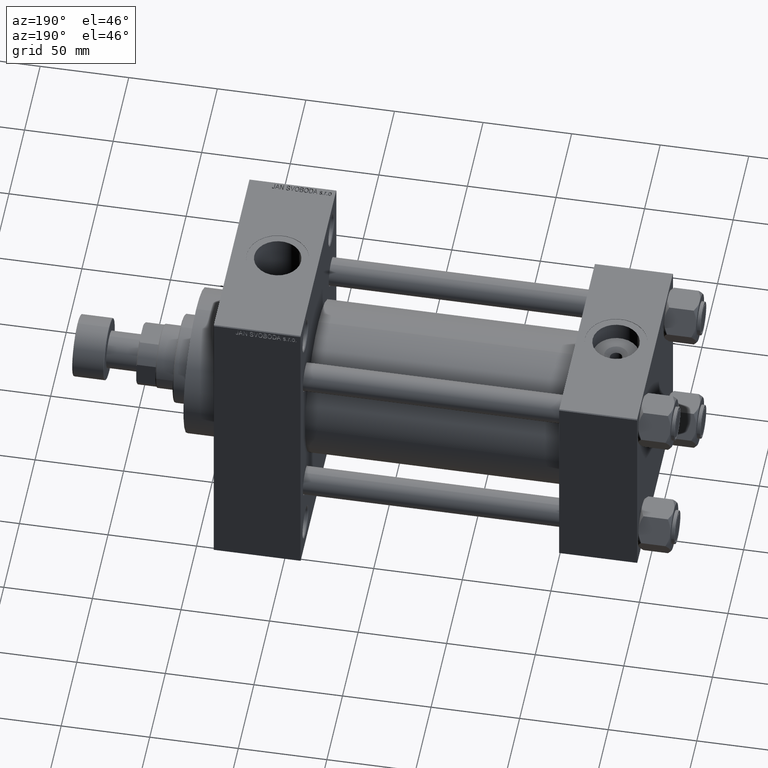
[diagram: clean part render]
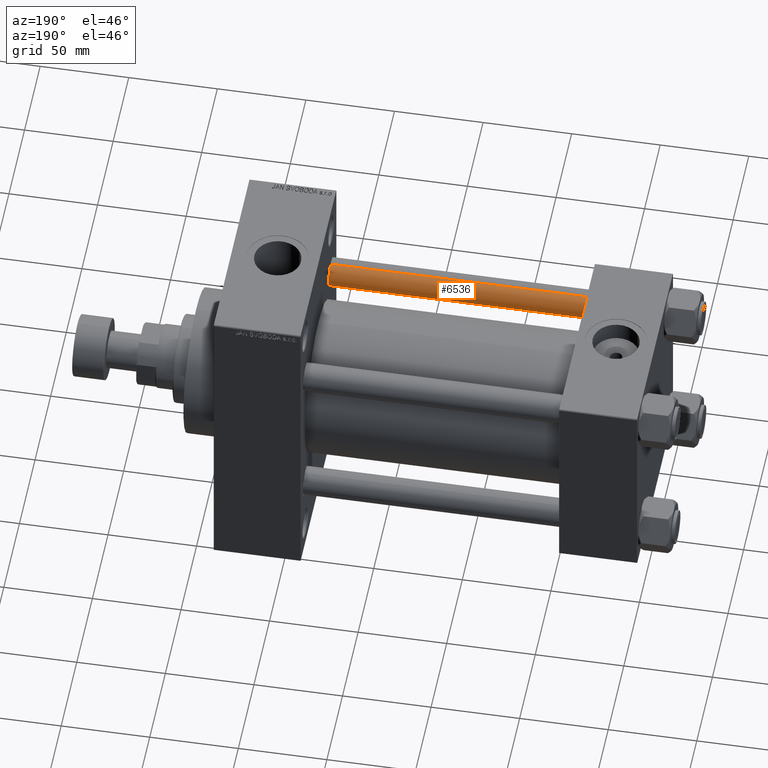
[diagram: same view with one face highlighted and labeled with its STEP entity id]
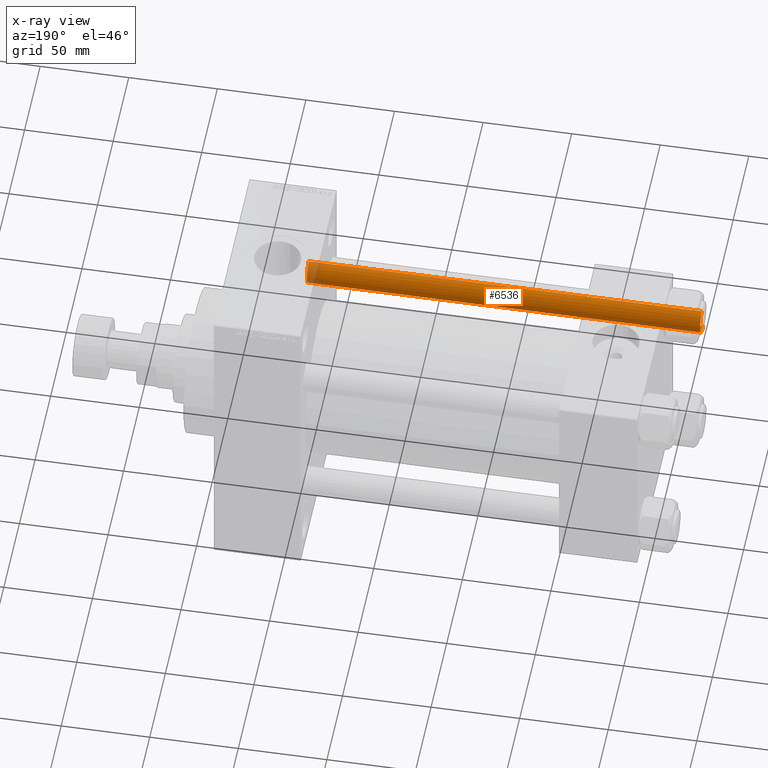
[diagram: x-ray of the same camera — body ghosted, the highlighted face saturated]
A machine part, auxiliary view. The second image highlights one B-rep face of the part: STEP entity #6536.
The next image is the same camera in x-ray: the body ghosted, the highlighted face saturated — about 3% of this face is hidden behind the body in this view.
In plain terms, the highlighted cylindrical surface (edge-blend (fillet) strip) has radius 8 mm, axis along (1, 0, 0).
Its self-contained STEP definition (entity closure, byte-faithful):
#600 = LINE ( 'NONE', #15780, #41859 ) ;
#1350 = VERTEX_POINT ( 'NONE', #40882 ) ;
#2764 = DIRECTION ( 'NONE',  ( -0.000000000000000000, -0.000000000000000000, -1.000000000000000000 ) ) ;
#3534 = CIRCLE ( 'NONE', #37884, 8.000000000000000000 ) ;
#3760 = VERTEX_POINT ( 'NONE', #14308 ) ;
#5647 = EDGE_CURVE ( 'NONE', #3760, #38433, #17274, .T. ) ;
#6536 = ADVANCED_FACE ( 'NONE', ( #36948 ), #41103, .T. ) ;
#7841 = CARTESIAN_POINT ( 'NONE',  ( 0.000000000000000000, 0.000000000000000000, 0.5000000000001669775 ) ) ;
#7954 = ORIENTED_EDGE ( 'NONE', *, *, #5647, .T. ) ;
#8690 = AXIS2_PLACEMENT_3D ( 'NONE', #47682, #40604, #14706 ) ;
#9461 = ORIENTED_EDGE ( 'NONE', *, *, #32643, .F. ) ;
#12981 = VERTEX_POINT ( 'NONE', #31331 ) ;
#14308 = CARTESIAN_POINT ( 'NONE',  ( 8.000000000000000000, 9.797174393178823685E-16, 222.5000000000001137 ) ) ;
#14706 = DIRECTION ( 'NONE',  ( -1.000000000000000000, 0.000000000000000000, 0.000000000000000000 ) ) ;
#15780 = CARTESIAN_POINT ( 'NONE',  ( 8.000000000000000000, 9.797174393178823685E-16, 223.0000000000000000 ) ) ;
#16029 = DIRECTION ( 'NONE',  ( -0.000000000000000000, -0.000000000000000000, -1.000000000000000000 ) ) ;
#17274 = CIRCLE ( 'NONE', #32864, 8.000000000000000000 ) ;
#19320 = EDGE_LOOP ( 'NONE', ( #9461, #7954, #44197, #25648 ) ) ;
#24470 = CARTESIAN_POINT ( 'NONE',  ( -8.000000000000000000, 0.000000000000000000, 222.5000000000001137 ) ) ;
#24777 = DIRECTION ( 'NONE',  ( 1.000000000000000000, 0.000000000000000000, 0.000000000000000000 ) ) ;
#25648 = ORIENTED_EDGE ( 'NONE', *, *, #30301, .T. ) ;
#26685 = DIRECTION ( 'NONE',  ( -0.000000000000000000, -0.000000000000000000, 1.000000000000000000 ) ) ;
#28351 = VECTOR ( 'NONE', #2764, 1000.000000000000000 ) ;
#28695 = DIRECTION ( 'NONE',  ( 0.000000000000000000, 0.000000000000000000, -1.000000000000000000 ) ) ;
#30301 = EDGE_CURVE ( 'NONE', #1350, #12981, #3534, .T. ) ;
#31331 = CARTESIAN_POINT ( 'NONE',  ( 8.000000000000000000, 9.797174393178823685E-16, 0.5000000000001669775 ) ) ;
#32643 = EDGE_CURVE ( 'NONE', #3760, #12981, #600, .T. ) ;
#32864 = AXIS2_PLACEMENT_3D ( 'NONE', #46762, #28695, #24777 ) ;
#36948 = FACE_OUTER_BOUND ( 'NONE', #19320, .T. ) ;
#37884 = AXIS2_PLACEMENT_3D ( 'NONE', #7841, #26685, #41349 ) ;
#38433 = VERTEX_POINT ( 'NONE', #24470 ) ;
#39456 = CARTESIAN_POINT ( 'NONE',  ( -8.000000000000000000, 0.000000000000000000, 223.0000000000000000 ) ) ;
#39695 = LINE ( 'NONE', #39456, #28351 ) ;
#40604 = DIRECTION ( 'NONE',  ( -0.000000000000000000, -0.000000000000000000, -1.000000000000000000 ) ) ;
#40882 = CARTESIAN_POINT ( 'NONE',  ( -8.000000000000000000, 0.000000000000000000, 0.5000000000001669775 ) ) ;
#41103 = CYLINDRICAL_SURFACE ( 'NONE', #8690, 8.000000000000000000 ) ;
#41349 = DIRECTION ( 'NONE',  ( 1.000000000000000000, 0.000000000000000000, 0.000000000000000000 ) ) ;
#41859 = VECTOR ( 'NONE', #16029, 1000.000000000000000 ) ;
#42949 = EDGE_CURVE ( 'NONE', #38433, #1350, #39695, .T. ) ;
#44197 = ORIENTED_EDGE ( 'NONE', *, *, #42949, .T. ) ;
#46762 = CARTESIAN_POINT ( 'NONE',  ( 0.000000000000000000, 0.000000000000000000, 222.5000000000001137 ) ) ;
#47682 = CARTESIAN_POINT ( 'NONE',  ( 0.000000000000000000, 0.000000000000000000, 223.0000000000000000 ) ) ;